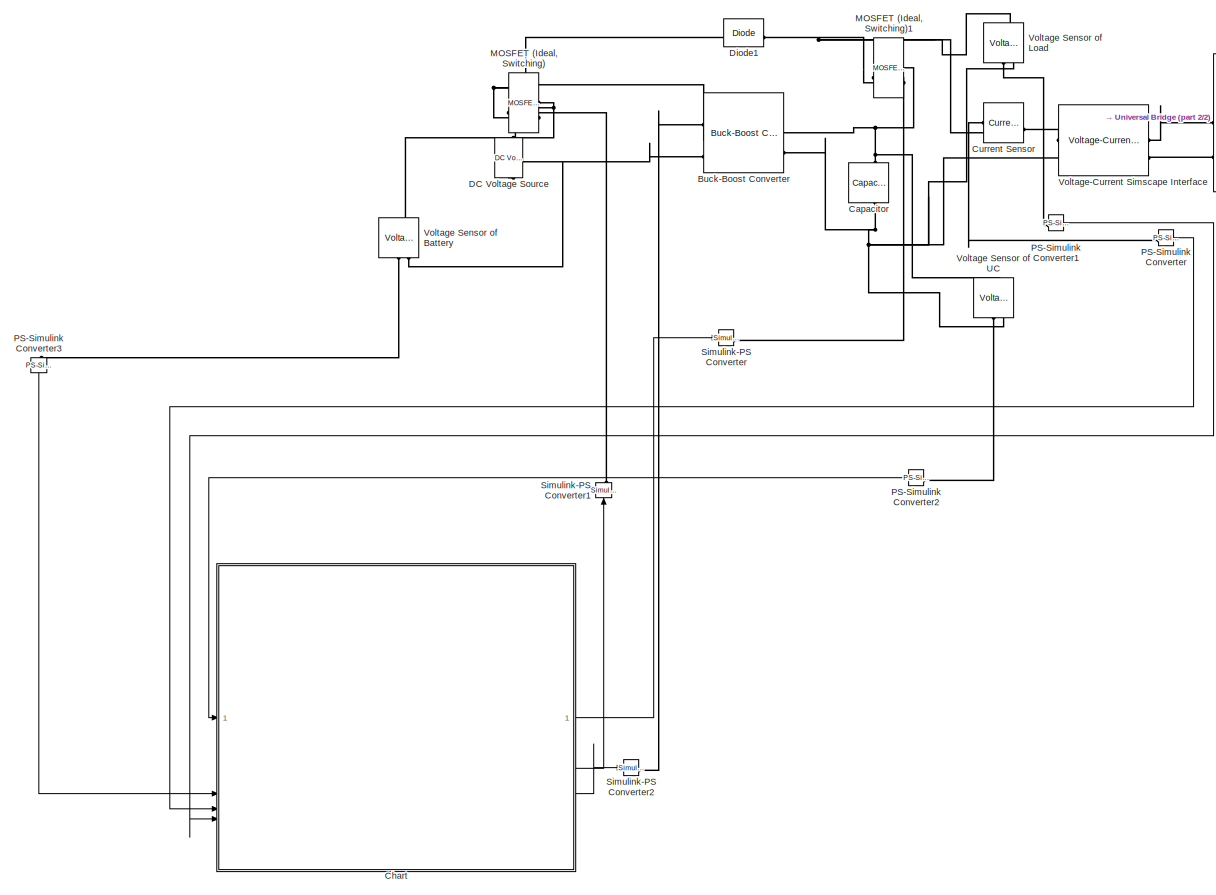
[diagram: root canvas - part 1/2, most of the canvas]
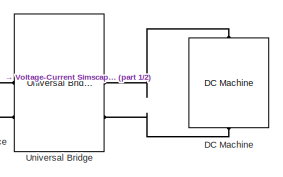
[diagram: root canvas - part 2/2, top right region]
MODEL slx_701a9a56c56c
KIND model
CONFIG AbsTol = auto
CONFIG EnableMultiTasking = off
CONFIG FixedStep = auto
CONFIG MaxStep = auto
CONFIG MinStep = auto
CONFIG RelTol = 1e-3
CONFIG SampleTimeConstraint = Unconstrained
CONFIG SolverName = VariableStepAuto
CONFIG StartTime = 0.0
CONFIG StopTime = 10.0
BLOCK [Reference] Buck-Boost Converter  REF=ee_lib/Semiconductors &
Converters/Converters/Buck-Boost Converter
  SourceBlock = ee_lib/Semiconductors &\nConverters/Converters/Buck-Boost Converter
  SourceType = Buck-Boost Converter
BLOCK [Reference] Capacitor  REF=fl_lib/Electrical/Electrical Elements/Capacitor
  NameLocation = left
  SourceBlock = fl_lib/Electrical/Electrical Elements/Capacitor
  SourceType = Capacitor
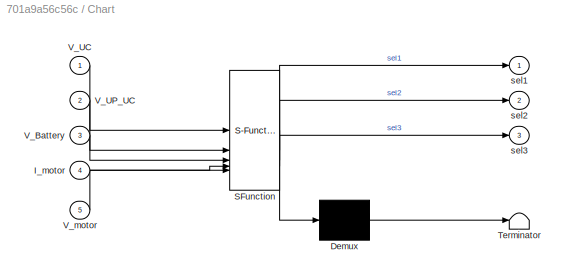
BLOCK [SubSystem] Chart
  ErrorFcn = Stateflow.Translate.translate
  PermitHierarchicalResolution = ExplicitOnly
  SFBlockType = Chart
  TreatAsAtomicUnit = on
BLOCK [Demux] Chart/ Demux 
  Outputs = 1
BLOCK [S-Function] Chart/ SFunction 
  EnableBusSupport = on
  FunctionName = sf_sfun
  PortCounts = [5 4]
  SFcnIsStateOwnerBlock = off
  SFunctionDeploymentMode = off
  Tag = Stateflow S-Function 3
BLOCK [Terminator] Chart/ Terminator 
BLOCK [Inport] Chart/I_motor
  Port = 4
BLOCK [Inport] Chart/V_Battery
  Port = 3
BLOCK [Inport] Chart/V_UC
BLOCK [Inport] Chart/V_UP_UC
  Port = 2
BLOCK [Inport] Chart/V_motor
  Port = 5
BLOCK [Outport] Chart/sel1
BLOCK [Outport] Chart/sel2
  Port = 2
BLOCK [Outport] Chart/sel3
  Port = 3
BLOCK [Reference] Current Sensor  REF=fl_lib/Electrical/Electrical Sensors/Current Sensor
  SourceBlock = fl_lib/Electrical/Electrical Sensors/Current Sensor
  SourceType = Current Sensor
BLOCK [Reference] DC Machine  REF=spsDCMachineLib/DC Machine
  LibrarySourceBlock = sps_lib/Electrical Machines/DC Machine
  NameLocation = right
  SourceBlock = spsDCMachineLib/DC Machine
  SourceType = DC machine
BLOCK [Reference] DC Voltage Source  REF=fl_lib/Electrical/Electrical Sources/DC Voltage Source
  NameLocation = right
  SourceBlock = fl_lib/Electrical/Electrical Sources/DC Voltage Source
  SourceType = DC Voltage Source
BLOCK [Reference] Diode1  REF=fl_lib/Electrical/Electrical Elements/Diode
  SourceBlock = fl_lib/Electrical/Electrical Elements/Diode
  SourceType = Diode
BLOCK [Reference] MOSFET (Ideal, Switching)  REF=ee_lib/Semiconductors &
Converters/MOSFET
(Ideal,
Switching)
  NameLocation = top
  SourceBlock = ee_lib/Semiconductors &\nConverters/MOSFET\n(Ideal,\nSwitching)
  SourceType = MOSFET\n(Ideal,\nSwitching)
BLOCK [Reference] MOSFET (Ideal, Switching)1  REF=ee_lib/Semiconductors &
Converters/MOSFET
(Ideal,
Switching)
  NameLocation = top
  SourceBlock = ee_lib/Semiconductors &\nConverters/MOSFET\n(Ideal,\nSwitching)
  SourceType = MOSFET\n(Ideal,\nSwitching)
BLOCK [Reference] PS-Simulink Converter  REF=nesl_utility/PS-Simulink
Converter
  SourceBlock = nesl_utility/PS-Simulink\nConverter
  SourceType = PS-Simulink\nConverter
BLOCK [Reference] PS-Simulink Converter1  REF=nesl_utility/PS-Simulink
Converter
  SourceBlock = nesl_utility/PS-Simulink\nConverter
  SourceType = PS-Simulink\nConverter
BLOCK [Reference] PS-Simulink Converter2  REF=nesl_utility/PS-Simulink
Converter
  SourceBlock = nesl_utility/PS-Simulink\nConverter
  SourceType = PS-Simulink\nConverter
BLOCK [Reference] PS-Simulink Converter3  REF=nesl_utility/PS-Simulink
Converter
  NameLocation = left
  SourceBlock = nesl_utility/PS-Simulink\nConverter
  SourceType = PS-Simulink\nConverter
BLOCK [Reference] Simulink-PS Converter  REF=nesl_utility/Simulink-PS
Converter
  SourceBlock = nesl_utility/Simulink-PS\nConverter
  SourceType = Simulink-PS\nConverter
BLOCK [Reference] Simulink-PS Converter1  REF=nesl_utility/Simulink-PS
Converter
  NameLocation = left
  SourceBlock = nesl_utility/Simulink-PS\nConverter
  SourceType = Simulink-PS\nConverter
BLOCK [Reference] Simulink-PS Converter2  REF=nesl_utility/Simulink-PS
Converter
  SourceBlock = nesl_utility/Simulink-PS\nConverter
  SourceType = Simulink-PS\nConverter
BLOCK [Reference] Universal Bridge  REF=spsUniversalBridgeLib/Universal Bridge
  LibrarySourceBlock = sps_lib/Power Electronics/Universal Bridge
  NameLocation = top
  SourceBlock = spsUniversalBridgeLib/Universal Bridge
  SourceType = Universal Bridge
BLOCK [Reference] Voltage Sensor of Battery  REF=fl_lib/Electrical/Electrical Sensors/Voltage Sensor
  NameLocation = right
  SourceBlock = fl_lib/Electrical/Electrical Sensors/Voltage Sensor
  SourceType = Voltage Sensor
BLOCK [Reference] Voltage Sensor of Load  REF=fl_lib/Electrical/Electrical Sensors/Voltage Sensor
  NameLocation = right
  SourceBlock = fl_lib/Electrical/Electrical Sensors/Voltage Sensor
  SourceType = Voltage Sensor
BLOCK [Reference] Voltage Sensor of UC  REF=fl_lib/Electrical/Electrical Sensors/Voltage Sensor
  NameLocation = right
  SourceBlock = fl_lib/Electrical/Electrical Sensors/Voltage Sensor
  SourceType = Voltage Sensor
BLOCK [Reference] Voltage-Current Simscape Interface  REF=spsVoltageCurrentSimscapeInterfaceLib/Voltage-Current
Simscape Interface
  LibrarySourceBlock = sps_lib/Utilities/Voltage-Current\nSimscape Interface
  SourceBlock = spsVoltageCurrentSimscapeInterfaceLib/Voltage-Current\nSimscape Interface
  SourceType = Specialized Power Systems - Simscape Interface Element
LINE Chart:1 -> Simulink-PS Converter:1
LINE Chart:2 -> Simulink-PS Converter1:1
LINE Chart:3 -> Simulink-PS Converter2:1
LINE PS-Simulink Converter1:1 -> Chart:5
LINE PS-Simulink Converter2:1 -> Chart:1
LINE PS-Simulink Converter3:1 -> Chart:3
LINE PS-Simulink Converter:1 -> Chart:4
PLINE Buck-Boost Converter:LConn1 -- Simulink-PS Converter2:RConn1
PNET net1: Buck-Boost Converter:LConn2 -- Diode1:LConn1 -- MOSFET (Ideal, Switching):RConn2
PNET net2: Buck-Boost Converter:LConn3 -- DC Voltage Source:RConn1 -- Voltage Sensor of Battery:RConn2
PNET net3: Buck-Boost Converter:RConn1 -- Capacitor:LConn1 -- MOSFET (Ideal, Switching)1:RConn1 -- Voltage Sensor of UC:LConn1
PNET net4: Buck-Boost Converter:RConn2 -- Capacitor:RConn1 -- Voltage Sensor of Load:RConn2 -- Voltage Sensor of UC:RConn2 -- Voltage-Current Simscape Interface:RConn2
PLINE Current Sensor:LConn1 -- Voltage-Current Simscape Interface:RConn1
PLINE Current Sensor:RConn1 -- PS-Simulink Converter:LConn1
PNET net5: Current Sensor:RConn2 -- Diode1:RConn1 -- MOSFET (Ideal, Switching)1:RConn2 -- Voltage Sensor of Load:LConn1
PLINE DC Machine:LConn1 -- Universal Bridge:LConn1
PLINE DC Machine:RConn1 -- Universal Bridge:LConn2
PNET net6: DC Voltage Source:LConn1 -- MOSFET (Ideal, Switching):RConn1 -- Voltage Sensor of Battery:LConn1
PLINE MOSFET (Ideal, Switching)1:LConn1 -- Simulink-PS Converter:RConn1
PLINE MOSFET (Ideal, Switching):LConn1 -- Simulink-PS Converter1:RConn1
PLINE PS-Simulink Converter1:LConn1 -- Voltage Sensor of Load:RConn1
PLINE PS-Simulink Converter2:LConn1 -- Voltage Sensor of UC:RConn1
PLINE PS-Simulink Converter3:LConn1 -- Voltage Sensor of Battery:RConn1
PLINE Universal Bridge:RConn1 -- Voltage-Current Simscape Interface:LConn1
PLINE Universal Bridge:RConn2 -- Voltage-Current Simscape Interface:LConn2
note: PNET lines group multi-terminal physical nets as a canonical sorted terminal list (undirected conserving connections); 2-terminal nets keep the pairwise PLINE form
CHART Chart states=15 transitions=17
  STATE_LABEL 'PD'
  STATE_LABEL 'Start'
  STATE_LABEL 'LP_recharging\nentry:\nsel2=1;\nsel1=0;\nsel3=1;'
  STATE_LABEL 'Hybrid_UC_battery_recover\nentry:\nsel1=1;\nsel2=1;\nsel3=2;'
  STATE_LABEL 'PB \nentry:\nsel1=0;\nsel2=1;\nsel3=0;\n'
  STATE_LABEL 'S3'
  STATE_LABEL 'S2'
  STATE_LABEL 'S1'
  STATE_LABEL 'Pure_UC_recover\nentry:\nsel1=1;\nsel2=0;\nsel3=0;'
  STATE_LABEL 'RB_Controller'
  STATE_LABEL 'S6'
  STATE_LABEL 'Hybrid_Battery_UC\nentry:\nsel1=1;\nsel2=1;\nsel3=1'
  STATE_LABEL 'S4'
  STATE_LABEL 'Pure_UC\nentry:\nsel1=1;\nsel2=0;\nsel3=0;\n'
  STATE_LABEL 'S5'
CHART  states=0 transitions=0
